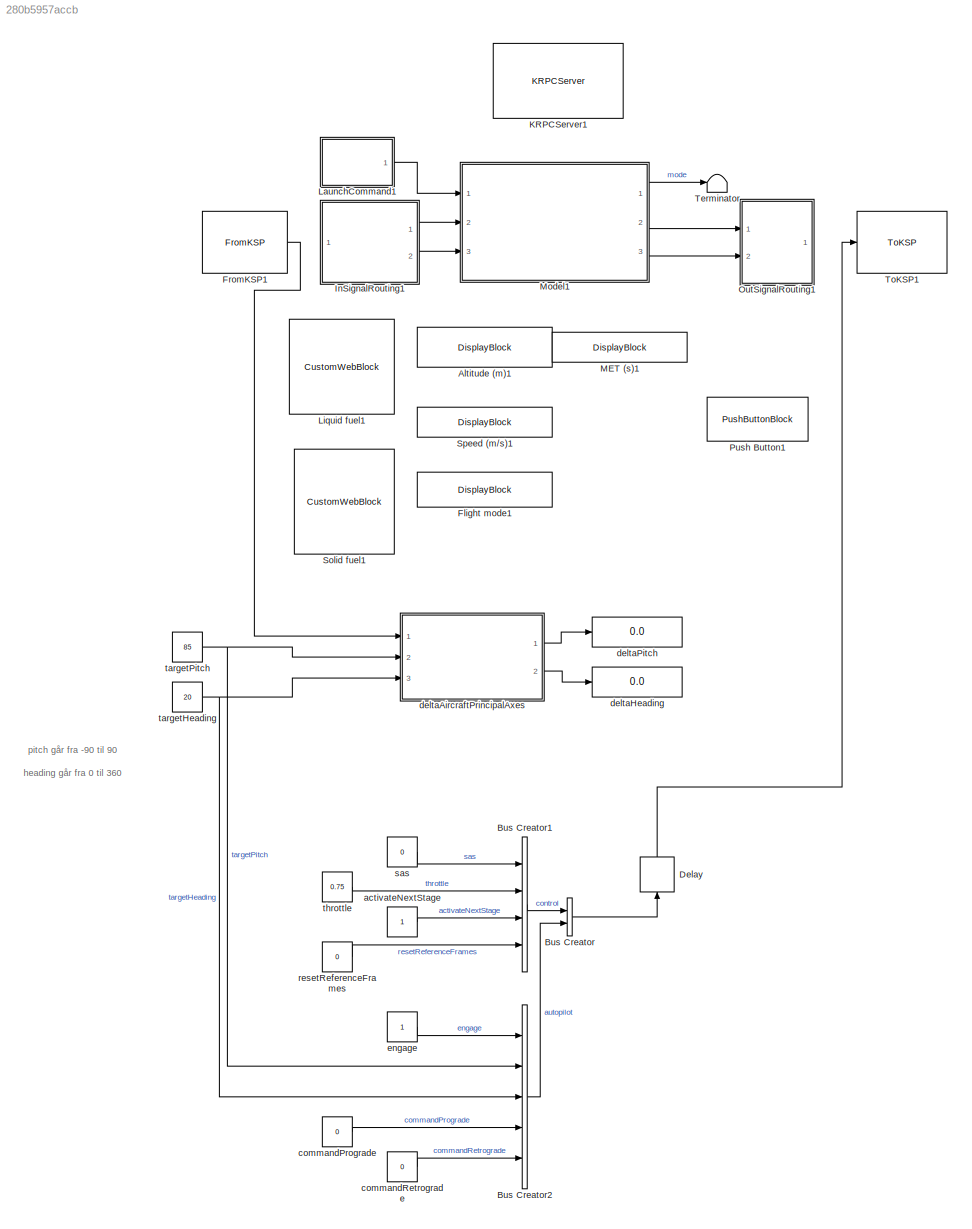
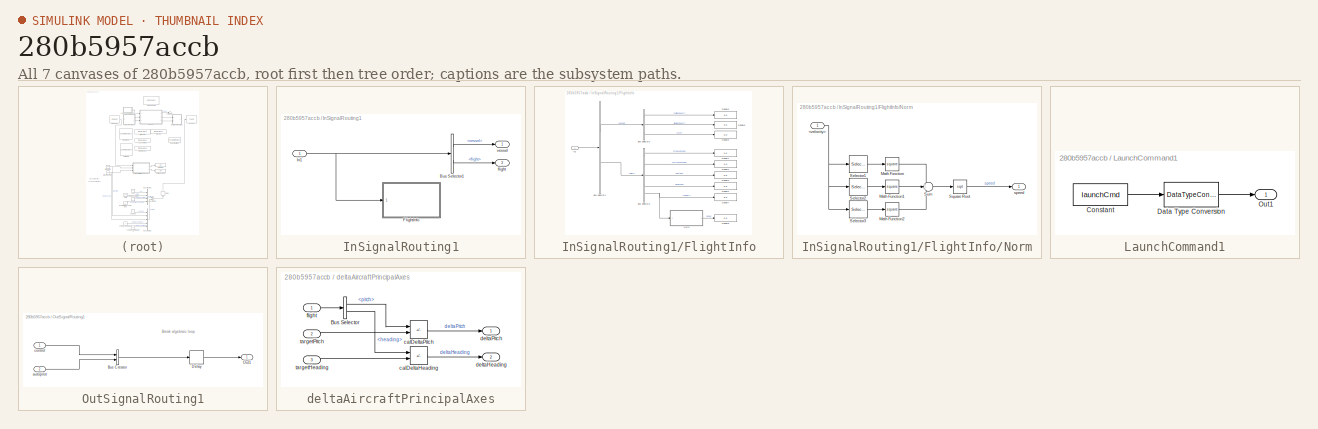
[diagram: thumbnail index - all 7 canvases of the model, root first then tree order]
MODEL slx_280b5957accb
KIND model
CONFIG AbsTol = auto
CONFIG EnableMultiTasking = off
CONFIG FixedStep = 0.1
CONFIG MaxStep = auto
CONFIG MinStep = auto
CONFIG RelTol = 1e-3
CONFIG SampleTimeConstraint = Unconstrained
CONFIG SolverName = FixedStepAuto
CONFIG StartTime = 0.0
CONFIG StopTime = 10.0
BLOCK [DisplayBlock] Altitude (m)1
  Format = short
  LabelPosition = Bottom
  Transparency = 1
BLOCK [BusCreator] Bus Creator
  DisplayOption = bar
  InheritFromInputs = on
  Inputs = 2
  NonVirtualBus = on
  OutDataTypeStr = Bus: kspTxIn
  Ports = [2, 1]
BLOCK [BusCreator] Bus Creator1
  DisplayOption = bar
  InheritFromInputs = on
  Inputs = 4
  OutDataTypeStr = Bus: control
  Ports = [4, 1]
BLOCK [BusCreator] Bus Creator2
  DisplayOption = bar
  InheritFromInputs = on
  Inputs = 5
  NonVirtualBus = on
  OutDataTypeStr = Bus: autopilot
  Ports = [5, 1]
BLOCK [Delay] Delay
  DelayLength = 1
  InputPortMap = u0
  NameLocation = right
  Ports = [1, 1]
BLOCK [DisplayBlock] Flight mode1
  Format = short
  LabelPosition = Bottom
  Transparency = 1
BLOCK [Reference] FromKSP1  REF=ksplib/FromKSP  (lib defined in slx_22327d9a050f)
  Ports = [0, 1]
  SourceBlock = ksplib/FromKSP
  SourceType = FromKSP
BLOCK [SubSystem] InSignalRouting1
  Commented = on
  Ports = [1, 2]
  RequestExecContextInheritance = off
BLOCK [BusSelector] InSignalRouting1/Bus Selector1
  OutputSignals = vessel,flight
  Ports = [1, 2]
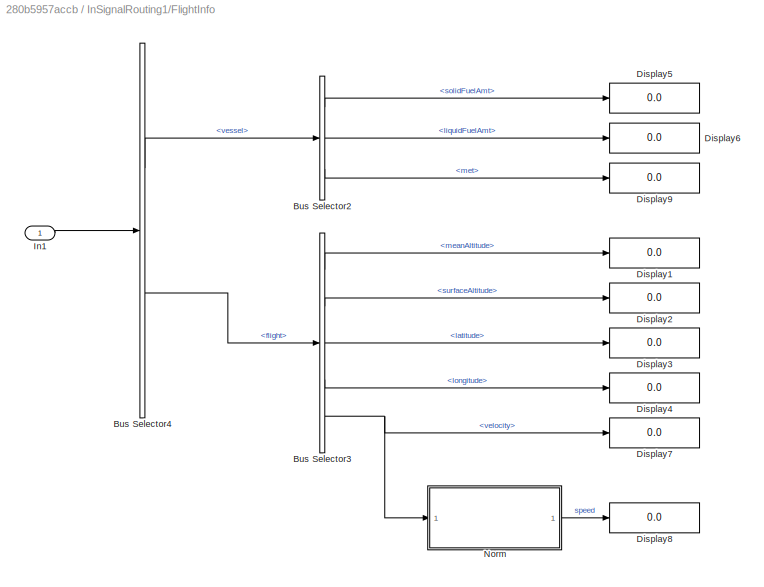
BLOCK [SubSystem] InSignalRouting1/FlightInfo
  Ports = [1]
  RequestExecContextInheritance = off
BLOCK [BusSelector] InSignalRouting1/FlightInfo/Bus Selector2
  OutputSignals = solidFuelAmt,liquidFuelAmt,met
  Ports = [1, 3]
BLOCK [BusSelector] InSignalRouting1/FlightInfo/Bus Selector3
  OutputSignals = meanAltitude,surfaceAltitude,latitude,longitude,velocity
  Ports = [1, 5]
BLOCK [BusSelector] InSignalRouting1/FlightInfo/Bus Selector4
  OutputSignals = vessel,flight
  Ports = [1, 2]
BLOCK [Display] InSignalRouting1/FlightInfo/Display1
  Decimation = 1
  Ports = [1]
BLOCK [Display] InSignalRouting1/FlightInfo/Display2
  Decimation = 1
  Ports = [1]
BLOCK [Display] InSignalRouting1/FlightInfo/Display3
  Decimation = 1
  Ports = [1]
BLOCK [Display] InSignalRouting1/FlightInfo/Display4
  Decimation = 1
  Ports = [1]
BLOCK [Display] InSignalRouting1/FlightInfo/Display5
  Decimation = 1
  Ports = [1]
BLOCK [Display] InSignalRouting1/FlightInfo/Display6
  Decimation = 1
  Ports = [1]
BLOCK [Display] InSignalRouting1/FlightInfo/Display7
  Decimation = 1
  Ports = [1]
BLOCK [Display] InSignalRouting1/FlightInfo/Display8
  Decimation = 1
  Ports = [1]
BLOCK [Display] InSignalRouting1/FlightInfo/Display9
  Decimation = 1
  Ports = [1]
BLOCK [Inport] InSignalRouting1/FlightInfo/In1
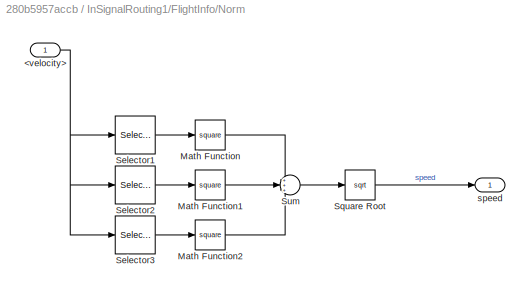
BLOCK [SubSystem] InSignalRouting1/FlightInfo/Norm
  Ports = [1, 1]
  RequestExecContextInheritance = off
BLOCK [Inport] InSignalRouting1/FlightInfo/Norm/<velocity>
BLOCK [Math] InSignalRouting1/FlightInfo/Norm/Math Function
  Operator = square
  Ports = [1, 1]
BLOCK [Math] InSignalRouting1/FlightInfo/Norm/Math Function1
  Operator = square
  Ports = [1, 1]
BLOCK [Math] InSignalRouting1/FlightInfo/Norm/Math Function2
  Operator = square
  Ports = [1, 1]
BLOCK [Selector] InSignalRouting1/FlightInfo/Norm/Selector1
  IndexOptions = Index vector (dialog)
  Indices = 1
  InputPortWidth = 3
  OutputSizes = 1
  Ports = [1, 1]
BLOCK [Selector] InSignalRouting1/FlightInfo/Norm/Selector2
  IndexOptions = Index vector (dialog)
  Indices = 2
  InputPortWidth = 3
  OutputSizes = 1
  Ports = [1, 1]
BLOCK [Selector] InSignalRouting1/FlightInfo/Norm/Selector3
  IndexOptions = Index vector (dialog)
  Indices = 3
  InputPortWidth = 3
  OutputSizes = 1
  Ports = [1, 1]
BLOCK [Sqrt] InSignalRouting1/FlightInfo/Norm/Square Root
BLOCK [Sum] InSignalRouting1/FlightInfo/Norm/Sum
  Inputs = +++
  Ports = [3, 1]
BLOCK [Outport] InSignalRouting1/FlightInfo/Norm/speed
BLOCK [Inport] InSignalRouting1/In1
BLOCK [Outport] InSignalRouting1/flight
  Port = 2
BLOCK [Outport] InSignalRouting1/vessel
BLOCK [Reference] KRPCServer1  REF=ksplib/KRPCServer  (lib defined in slx_22327d9a050f)
  Ports = []
  SourceBlock = ksplib/KRPCServer
  SourceType = KRPCServer
BLOCK [SubSystem] LaunchCommand1
  Commented = on
  Ports = [0, 1]
  RequestExecContextInheritance = off
BLOCK [Constant] LaunchCommand1/Constant
  Value = launchCmd
BLOCK [DataTypeConversion] LaunchCommand1/Data Type Conversion
  OutDataTypeStr = boolean
  RndMeth = Floor
  SaturateOnIntegerOverflow = off
BLOCK [Outport] LaunchCommand1/Out1
BLOCK [CustomWebBlock] Liquid fuel1
  Configuration = {"components":[{"name":"CircularScaleComponent","settings":{"bounds":{"max":225,"min":0,"tickInterval":"auto"},"direction":"cw","flipLimits":0,"innerRadius":0.75,"internalTickHeightScaleFactor":1,"labelColor":[255,252,199],"labelFont":{"font":"Arial","fontSize":12},"labelTransparency":1,"minorTickHeightScaleFactor":0.2,"needleImage":{"size":[1890,567],"src":"data:image\/svg+xml;base64,PD94bWwgdmVy...<+15935ch>
  LabelPosition = Hide
  ShowInitialText = on
BLOCK [DisplayBlock] MET (s)1
  Format = short
  LabelPosition = Bottom
  Transparency = 1
BLOCK [ModelReference] Model1
  Commented = on
  ModelNameDialog = guidance
  ModelReferenceVersion = 1.177
  Ports = [3, 3]
BLOCK [SubSystem] OutSignalRouting1
  Commented = on
  Ports = [2, 1]
  RequestExecContextInheritance = off
BLOCK [BusCreator] OutSignalRouting1/Bus Creator
  DisplayOption = bar
  InheritFromInputs = off
  Inputs = 2
  NonVirtualBus = on
  OutDataTypeStr = Bus: kspTxIn
  Ports = [2, 1]
BLOCK [Delay] OutSignalRouting1/Delay
  DelayLength = 1
  InputPortMap = u0
  Ports = [1, 1]
BLOCK [Outport] OutSignalRouting1/Out1
BLOCK [Inport] OutSignalRouting1/autopilot
  OutDataTypeStr = Bus: autopilot
  Port = 2
BLOCK [Inport] OutSignalRouting1/control
  OutDataTypeStr = Bus: control
BLOCK [PushButtonBlock] Push Button1
  ButtonText = Launch
BLOCK [CustomWebBlock] Solid fuel1
  Configuration = {"components":[{"name":"CircularScaleComponent","settings":{"bounds":{"max":750,"min":0,"tickInterval":"auto"},"direction":"cw","flipLimits":0,"innerRadius":0.75,"internalTickHeightScaleFactor":1,"labelColor":[255,252,199],"labelFont":{"font":"Arial","fontSize":12},"labelTransparency":1,"minorTickHeightScaleFactor":0.2,"needleImage":{"size":[1890,567],"src":"data:image\/svg+xml;base64,PD94bWwgdmVy...<+15935ch>
  LabelPosition = Hide
  ShowInitialText = on
BLOCK [DisplayBlock] Speed (m//s)1
  Format = short
  LabelPosition = Bottom
  Transparency = 1
BLOCK [Terminator] Terminator
  Commented = on
BLOCK [Reference] ToKSP1  REF=ksplib/ToKSP  (lib defined in slx_22327d9a050f)
  Ports = [1]
  SourceBlock = ksplib/ToKSP
  SourceType = ToKSP
BLOCK [Constant] activateNextStage
  OutDataTypeStr = boolean
BLOCK [Constant] commandPrograde
  OutDataTypeStr = boolean
  Value = 0
BLOCK [Constant] commandRetrograde
  OutDataTypeStr = boolean
  Value = 0
BLOCK [SubSystem] deltaAircraftPrincipalAxes
  Ports = [3, 2]
  RequestExecContextInheritance = off
BLOCK [BusSelector] deltaAircraftPrincipalAxes/Bus Selector
  OutputSignals = flight.pitch,flight.heading
  Ports = [1, 2]
BLOCK [Sum] deltaAircraftPrincipalAxes/calDeltaHeading
  IconShape = rectangular
  Inputs = +-
  Ports = [2, 1]
BLOCK [Sum] deltaAircraftPrincipalAxes/calDeltaPitch
  IconShape = rectangular
  Inputs = +-
  Ports = [2, 1]
BLOCK [Outport] deltaAircraftPrincipalAxes/deltaHeading
  Port = 2
BLOCK [Outport] deltaAircraftPrincipalAxes/deltaPitch
BLOCK [Inport] deltaAircraftPrincipalAxes/flight
BLOCK [Inport] deltaAircraftPrincipalAxes/targetHeading
  Port = 3
BLOCK [Inport] deltaAircraftPrincipalAxes/targetPitch
  Port = 2
BLOCK [Display] deltaHeading
  Decimation = 1
  Ports = [1]
BLOCK [Display] deltaPitch
  Decimation = 1
  Ports = [1]
BLOCK [Constant] engage
  OutDataTypeStr = boolean
BLOCK [Constant] resetReferenceFrames
  OutDataTypeStr = boolean
  Value = 0
BLOCK [Constant] sas
  OutDataTypeStr = boolean
  Value = 0
BLOCK [Constant] targetHeading
  OutDataTypeStr = double
  OutMax = 360
  OutMin = 0
  Value = 20
BLOCK [Constant] targetPitch
  OutDataTypeStr = double
  OutMax = 90
  OutMin = -90
  Value = 85
BLOCK [Constant] throttle
  Value = 0.75
ANNOTATION (root): heading går fra 0 til 360
ANNOTATION (root): pitch går fra -90 til 90
ANNOTATION OutSignalRouting1: Break algebraic loop
LINE Bus Creator1:1 -> Bus Creator:1
LINE Bus Creator2:1 -> Bus Creator:2
LINE Bus Creator:1 -> Delay:1
LINE Delay:1 -> ToKSP1:1
LINE FromKSP1:1 -> deltaAircraftPrincipalAxes:1
LINE InSignalRouting1/Bus Selector1:1 -> InSignalRouting1/vessel:1
LINE InSignalRouting1/Bus Selector1:2 -> InSignalRouting1/flight:1
LINE InSignalRouting1/FlightInfo/Bus Selector2:1 -> InSignalRouting1/FlightInfo/Display5:1
LINE InSignalRouting1/FlightInfo/Bus Selector2:2 -> InSignalRouting1/FlightInfo/Display6:1
LINE InSignalRouting1/FlightInfo/Bus Selector2:3 -> InSignalRouting1/FlightInfo/Display9:1
LINE InSignalRouting1/FlightInfo/Bus Selector3:1 -> InSignalRouting1/FlightInfo/Display1:1
LINE InSignalRouting1/FlightInfo/Bus Selector3:2 -> InSignalRouting1/FlightInfo/Display2:1
LINE InSignalRouting1/FlightInfo/Bus Selector3:3 -> InSignalRouting1/FlightInfo/Display3:1
LINE InSignalRouting1/FlightInfo/Bus Selector3:4 -> InSignalRouting1/FlightInfo/Display4:1
NET InSignalRouting1/FlightInfo/Bus Selector3:5 -> InSignalRouting1/FlightInfo/Display7:1, InSignalRouting1/FlightInfo/Norm:1
LINE InSignalRouting1/FlightInfo/Bus Selector4:1 -> InSignalRouting1/FlightInfo/Bus Selector2:1
LINE InSignalRouting1/FlightInfo/Bus Selector4:2 -> InSignalRouting1/FlightInfo/Bus Selector3:1
LINE InSignalRouting1/FlightInfo/In1:1 -> InSignalRouting1/FlightInfo/Bus Selector4:1
NET InSignalRouting1/FlightInfo/Norm/<velocity>:1 -> InSignalRouting1/FlightInfo/Norm/Selector1:1, InSignalRouting1/FlightInfo/Norm/Selector2:1, InSignalRouting1/FlightInfo/Norm/Selector3:1
LINE InSignalRouting1/FlightInfo/Norm/Math Function1:1 -> InSignalRouting1/FlightInfo/Norm/Sum:2
LINE InSignalRouting1/FlightInfo/Norm/Math Function2:1 -> InSignalRouting1/FlightInfo/Norm/Sum:3
LINE InSignalRouting1/FlightInfo/Norm/Math Function:1 -> InSignalRouting1/FlightInfo/Norm/Sum:1
LINE InSignalRouting1/FlightInfo/Norm/Selector1:1 -> InSignalRouting1/FlightInfo/Norm/Math Function:1
LINE InSignalRouting1/FlightInfo/Norm/Selector2:1 -> InSignalRouting1/FlightInfo/Norm/Math Function1:1
LINE InSignalRouting1/FlightInfo/Norm/Selector3:1 -> InSignalRouting1/FlightInfo/Norm/Math Function2:1
LINE InSignalRouting1/FlightInfo/Norm/Square Root:1 -> InSignalRouting1/FlightInfo/Norm/speed:1
LINE InSignalRouting1/FlightInfo/Norm/Sum:1 -> InSignalRouting1/FlightInfo/Norm/Square Root:1
LINE InSignalRouting1/FlightInfo/Norm:1 -> InSignalRouting1/FlightInfo/Display8:1
NET InSignalRouting1/In1:1 -> InSignalRouting1/Bus Selector1:1, InSignalRouting1/FlightInfo:1
LINE InSignalRouting1:1 -> Model1:2
LINE InSignalRouting1:2 -> Model1:3
LINE LaunchCommand1/Constant:1 -> LaunchCommand1/Data Type Conversion:1
LINE LaunchCommand1/Data Type Conversion:1 -> LaunchCommand1/Out1:1
LINE LaunchCommand1:1 -> Model1:1
LINE Model1:1 -> Terminator:1
LINE Model1:2 -> OutSignalRouting1:1
LINE Model1:3 -> OutSignalRouting1:2
LINE OutSignalRouting1/Bus Creator:1 -> OutSignalRouting1/Delay:1
LINE OutSignalRouting1/Delay:1 -> OutSignalRouting1/Out1:1
LINE OutSignalRouting1/autopilot:1 -> OutSignalRouting1/Bus Creator:2
LINE OutSignalRouting1/control:1 -> OutSignalRouting1/Bus Creator:1
LINE activateNextStage:1 -> Bus Creator1:3
LINE commandPrograde:1 -> Bus Creator2:4
LINE commandRetrograde:1 -> Bus Creator2:5
LINE deltaAircraftPrincipalAxes/Bus Selector:1 -> deltaAircraftPrincipalAxes/calDeltaPitch:1
LINE deltaAircraftPrincipalAxes/Bus Selector:2 -> deltaAircraftPrincipalAxes/calDeltaHeading:1
LINE deltaAircraftPrincipalAxes/calDeltaHeading:1 -> deltaAircraftPrincipalAxes/deltaHeading:1
LINE deltaAircraftPrincipalAxes/calDeltaPitch:1 -> deltaAircraftPrincipalAxes/deltaPitch:1
LINE deltaAircraftPrincipalAxes/flight:1 -> deltaAircraftPrincipalAxes/Bus Selector:1
LINE deltaAircraftPrincipalAxes/targetHeading:1 -> deltaAircraftPrincipalAxes/calDeltaHeading:2
LINE deltaAircraftPrincipalAxes/targetPitch:1 -> deltaAircraftPrincipalAxes/calDeltaPitch:2
LINE deltaAircraftPrincipalAxes:1 -> deltaPitch:1
LINE deltaAircraftPrincipalAxes:2 -> deltaHeading:1
LINE engage:1 -> Bus Creator2:1
LINE resetReferenceFrames:1 -> Bus Creator1:4
LINE sas:1 -> Bus Creator1:1
NET targetHeading:1 -> Bus Creator2:3, deltaAircraftPrincipalAxes:3
NET targetPitch:1 -> Bus Creator2:2, deltaAircraftPrincipalAxes:2
LINE throttle:1 -> Bus Creator1:2
note: NET lines group one-source signal fan-out (src -> all destinations, sorted); 1:1 wires keep LINE
